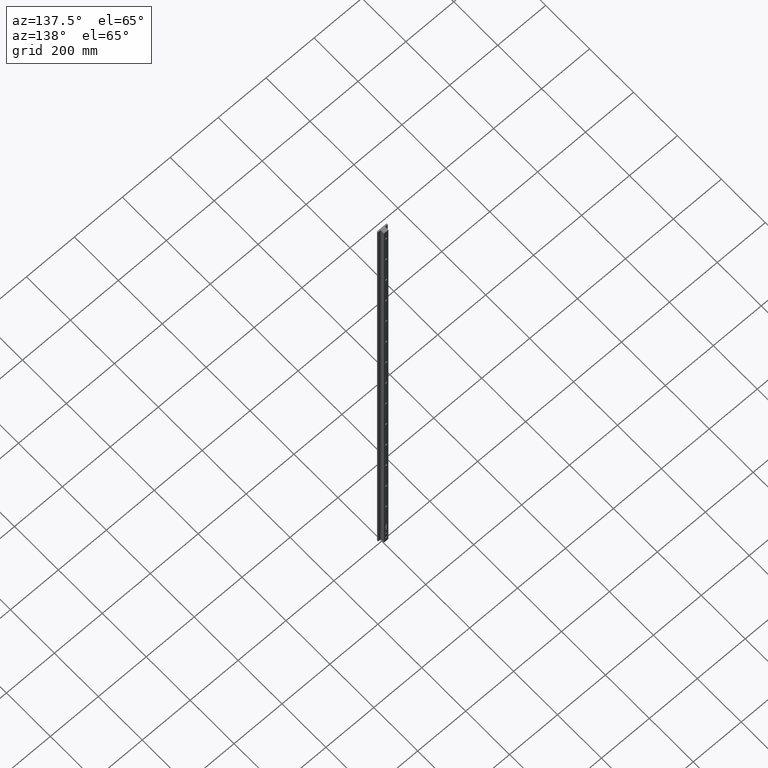
[diagram: clean part render]
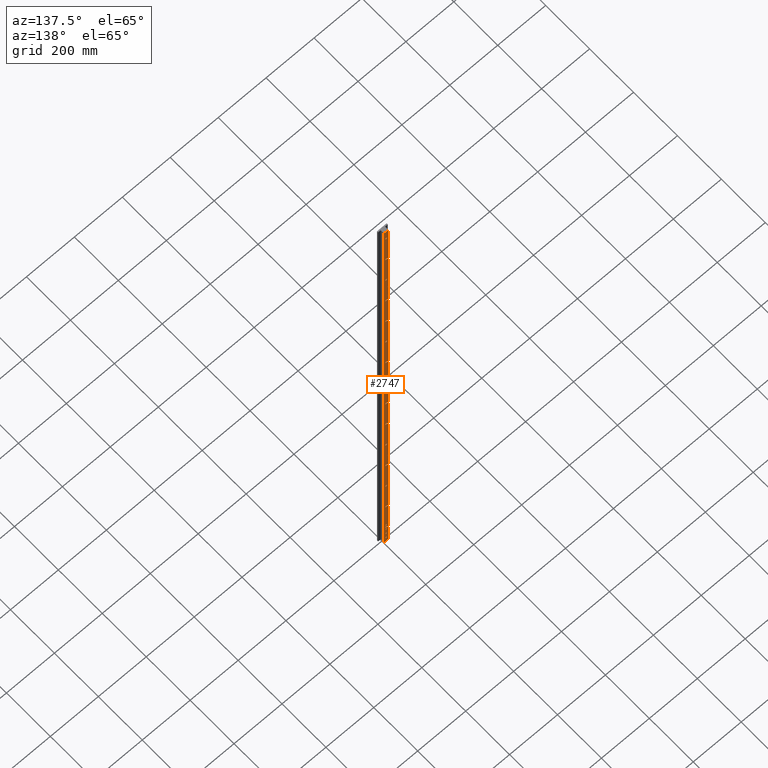
[diagram: same view with one face highlighted and labeled with its STEP entity id]
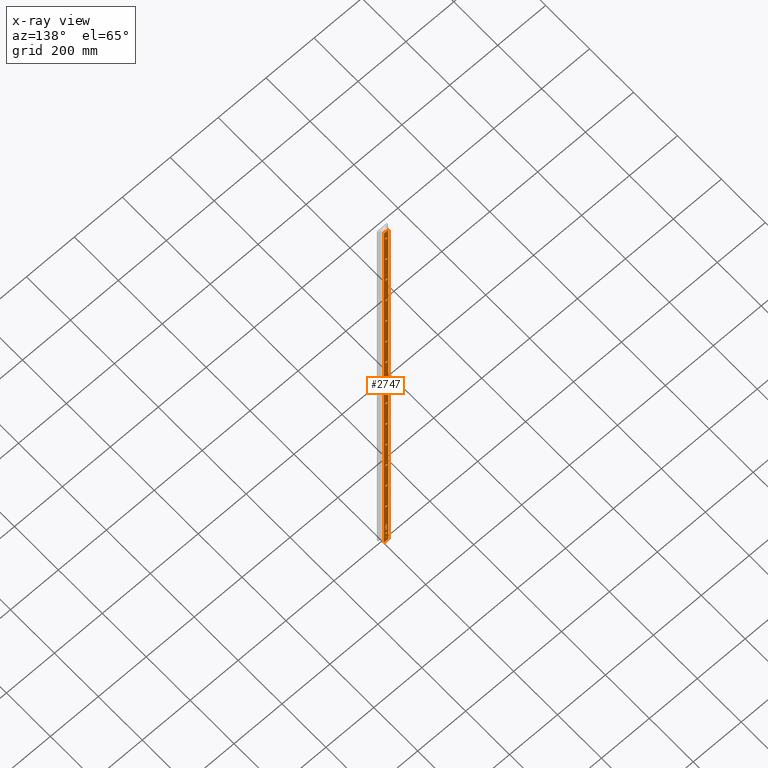
[diagram: x-ray of the same camera — body ghosted, the highlighted face saturated]
A machine part, auxiliary view. The second image highlights one B-rep face of the part: STEP entity #2747.
The next image is the same camera in x-ray: the body ghosted, the highlighted face saturated — about 0% of this face is hidden behind the body in this view.
In plain terms, the highlighted planar face has unit normal (-0, 1, 0).
Its self-contained STEP definition (entity closure, byte-faithful):
#1 = VERTEX_POINT ( 'NONE', #2469 ) ;
#2 = CARTESIAN_POINT ( 'NONE',  ( -4.250000000000003600, 20.00000000000000400, -950.0000000000000000 ) ) ;
#13 = CARTESIAN_POINT ( 'NONE',  ( -1.734723475976807100E-015, 20.00000000000000400, -499.9999999999999400 ) ) ;
#21 = DIRECTION ( 'NONE',  ( 0.0000000000000000000, 0.0000000000000000000, 1.000000000000000000 ) ) ;
#25 = EDGE_CURVE ( 'NONE', #75, #2083, #1128, .T. ) ;
#28 = EDGE_CURVE ( 'NONE', #149, #2575, #2750, .T. ) ;
#39 = DIRECTION ( 'NONE',  ( 8.673617379884034200E-017, -1.000000000000000000, -0.0000000000000000000 ) ) ;
#47 = AXIS2_PLACEMENT_3D ( 'NONE', #2068, #2670, #987 ) ;
#48 = CARTESIAN_POINT ( 'NONE',  ( -1.734723475976807100E-015, 20.00000000000000400, -2150.000000000000000 ) ) ;
#69 = EDGE_CURVE ( 'NONE', #1042, #1499, #1568, .T. ) ;
#70 = CARTESIAN_POINT ( 'NONE',  ( -1.734723475976807100E-015, 20.00000000000000400, -800.0000000000000000 ) ) ;
#73 = AXIS2_PLACEMENT_3D ( 'NONE', #2775, #1085, #1492 ) ;
#75 = VERTEX_POINT ( 'NONE', #307 ) ;
#98 = CARTESIAN_POINT ( 'NONE',  ( 8.999999999999998200, 20.00000000000000700, 0.0000000000000000000 ) ) ;
#100 = DIRECTION ( 'NONE',  ( 8.673617379884034200E-017, -1.000000000000000000, -0.0000000000000000000 ) ) ;
#102 = AXIS2_PLACEMENT_3D ( 'NONE', #810, #1340, #627 ) ;
#104 = EDGE_LOOP ( 'NONE', ( #2219, #1479 ) ) ;
#123 = DIRECTION ( 'NONE',  ( 1.000000000000000000, 0.0000000000000000000, 0.0000000000000000000 ) ) ;
#131 = AXIS2_PLACEMENT_3D ( 'NONE', #345, #2067, #734 ) ;
#140 = LINE ( 'NONE', #1758, #2342 ) ;
#149 = VERTEX_POINT ( 'NONE', #356 ) ;
#164 = EDGE_CURVE ( 'NONE', #2575, #149, #545, .T. ) ;
#174 = DIRECTION ( 'NONE',  ( 8.673617379884034200E-017, -1.000000000000000000, -0.0000000000000000000 ) ) ;
#175 = AXIS2_PLACEMENT_3D ( 'NONE', #2018, #712, #917 ) ;
#186 = CARTESIAN_POINT ( 'NONE',  ( -1.734723475976807100E-015, 20.00000000000000400, -2000.000000000000000 ) ) ;
#193 = AXIS2_PLACEMENT_3D ( 'NONE', #815, #1878, #1017 ) ;
#224 = ORIENTED_EDGE ( 'NONE', *, *, #2380, .T. ) ;
#225 = FACE_BOUND ( 'NONE', #386, .T. ) ;
#235 = ORIENTED_EDGE ( 'NONE', *, *, #1226, .T. ) ;
#237 = ORIENTED_EDGE ( 'NONE', *, *, #1320, .F. ) ;
#240 = CIRCLE ( 'NONE', #632, 3.400000000000069600 ) ;
#241 = EDGE_CURVE ( 'NONE', #2448, #2359, #349, .T. ) ;
#243 = ORIENTED_EDGE ( 'NONE', *, *, #1132, .T. ) ;
#251 = EDGE_CURVE ( 'NONE', #2283, #511, #1495, .T. ) ;
#252 = CARTESIAN_POINT ( 'NONE',  ( 2.880616337584308800E-015, 20.00000000000000700, -2194.999999999999500 ) ) ;
#256 = CARTESIAN_POINT ( 'NONE',  ( -1.734723475976807100E-015, 20.00000000000000400, -1849.999999999999800 ) ) ;
#259 = ORIENTED_EDGE ( 'NONE', *, *, #2561, .T. ) ;
#265 = ORIENTED_EDGE ( 'NONE', *, *, #2542, .T. ) ;
#266 = CARTESIAN_POINT ( 'NONE',  ( 4.250000000000000000, 20.00000000000000400, -950.0000000000000000 ) ) ;
#269 = EDGE_LOOP ( 'NONE', ( #835, #1888 ) ) ;
#280 = ORIENTED_EDGE ( 'NONE', *, *, #2646, .T. ) ;
#281 = CARTESIAN_POINT ( 'NONE',  ( -1.734723475976807100E-015, 20.00000000000000400, -200.0000000000000000 ) ) ;
#283 = CIRCLE ( 'NONE', #2113, 3.400000000000069600 ) ;
#284 = EDGE_CURVE ( 'NONE', #1, #1181, #653, .T. ) ;
#286 = FACE_BOUND ( 'NONE', #2326, .T. ) ;
#288 = CARTESIAN_POINT ( 'NONE',  ( -3.769441481476927300E-016, 20.00000000000000700, -2228.399999999999200 ) ) ;
#306 = DIRECTION ( 'NONE',  ( 0.0000000000000000000, 0.0000000000000000000, 1.000000000000000000 ) ) ;
#307 = CARTESIAN_POINT ( 'NONE',  ( 4.250000000000000000, 20.00000000000000400, -1250.000000000000000 ) ) ;
#310 = ORIENTED_EDGE ( 'NONE', *, *, #2097, .T. ) ;
#316 = FACE_BOUND ( 'NONE', #2026, .T. ) ;
#319 = DIRECTION ( 'NONE',  ( 8.673617379884034200E-017, -1.000000000000000000, -0.0000000000000000000 ) ) ;
#322 = CIRCLE ( 'NONE', #2649, 4.250000000000001800 ) ;
#335 = EDGE_CURVE ( 'NONE', #1483, #624, #283, .T. ) ;
#344 = CARTESIAN_POINT ( 'NONE',  ( -1.734723475976807100E-015, 20.00000000000000400, -650.0000000000000000 ) ) ;
#345 = CARTESIAN_POINT ( 'NONE',  ( -1.734723475976807100E-015, 20.00000000000000400, -1550.000000000000000 ) ) ;
#348 = CARTESIAN_POINT ( 'NONE',  ( -1.734723475976807100E-015, 20.00000000000000400, -650.0000000000000000 ) ) ;
#349 = LINE ( 'NONE', #1928, #521 ) ;
#354 = FACE_BOUND ( 'NONE', #1770, .T. ) ;
#356 = CARTESIAN_POINT ( 'NONE',  ( -4.250000000000003600, 20.00000000000000400, -1550.000000000000000 ) ) ;
#357 = ORIENTED_EDGE ( 'NONE', *, *, #28, .T. ) ;
#359 = CIRCLE ( 'NONE', #1709, 3.400000000000069600 ) ;
#362 = ORIENTED_EDGE ( 'NONE', *, *, #241, .F. ) ;
#364 = AXIS2_PLACEMENT_3D ( 'NONE', #1810, #2249, #123 ) ;
#375 = CARTESIAN_POINT ( 'NONE',  ( -1.734723475976807100E-015, 20.00000000000000400, -950.0000000000000000 ) ) ;
#376 = DIRECTION ( 'NONE',  ( 1.000000000000000000, 0.0000000000000000000, 0.0000000000000000000 ) ) ;
#386 = EDGE_LOOP ( 'NONE', ( #2079, #1353 ) ) ;
#395 = EDGE_CURVE ( 'NONE', #2448, #1229, #140, .T. ) ;
#399 = DIRECTION ( 'NONE',  ( 8.673617379884034200E-017, -1.000000000000000000, -0.0000000000000000000 ) ) ;
#413 = EDGE_CURVE ( 'NONE', #897, #427, #616, .T. ) ;
#414 = DIRECTION ( 'NONE',  ( 8.673617379884034200E-017, -1.000000000000000000, -0.0000000000000000000 ) ) ;
#418 = EDGE_CURVE ( 'NONE', #1181, #1, #2616, .T. ) ;
#424 = FACE_BOUND ( 'NONE', #933, .T. ) ;
#427 = VERTEX_POINT ( 'NONE', #1953 ) ;
#444 = CIRCLE ( 'NONE', #2663, 3.400000000000069600 ) ;
#446 = CARTESIAN_POINT ( 'NONE',  ( 4.250000000000000000, 20.00000000000000400, -1700.000000000000000 ) ) ;
#456 = EDGE_CURVE ( 'NONE', #1142, #1551, #1091, .T. ) ;
#462 = CARTESIAN_POINT ( 'NONE',  ( 1.022849713246833500E-014, 20.00000000000000700, -2131.599999999999900 ) ) ;
#480 = CARTESIAN_POINT ( 'NONE',  ( 6.970936646736380900E-015, 20.00000000000000700, -2168.399999999999600 ) ) ;
#482 = DIRECTION ( 'NONE',  ( 1.000000000000000000, 0.0000000000000000000, 0.0000000000000000000 ) ) ;
#487 = DIRECTION ( 'NONE',  ( 1.000000000000000000, 0.0000000000000000000, 0.0000000000000000000 ) ) ;
#491 = CARTESIAN_POINT ( 'NONE',  ( -1.734723475976807100E-015, 20.00000000000000400, -1250.000000000000000 ) ) ;
#511 = VERTEX_POINT ( 'NONE', #2680 ) ;
#518 = ORIENTED_EDGE ( 'NONE', *, *, #2246, .T. ) ;
#519 = AXIS2_PLACEMENT_3D ( 'NONE', #2558, #399, #618 ) ;
#521 = VECTOR ( 'NONE', #1260, 1000.000000000000000 ) ;
#522 = FACE_BOUND ( 'NONE', #769, .T. ) ;
#536 = AXIS2_PLACEMENT_3D ( 'NONE', #2227, #1779, #1361 ) ;
#540 = DIRECTION ( 'NONE',  ( 8.673617379884034200E-017, -1.000000000000000000, -0.0000000000000000000 ) ) ;
#545 = CIRCLE ( 'NONE', #193, 4.250000000000001800 ) ;
#548 = CIRCLE ( 'NONE', #790, 4.250000000000001800 ) ;
#551 = FACE_BOUND ( 'NONE', #104, .T. ) ;
#553 = VERTEX_POINT ( 'NONE', #1604 ) ;
#562 = CIRCLE ( 'NONE', #683, 4.250000000000001800 ) ;
#583 = FACE_BOUND ( 'NONE', #992, .T. ) ;
#584 = ORIENTED_EDGE ( 'NONE', *, *, #1964, .F. ) ;
#602 = VERTEX_POINT ( 'NONE', #1615 ) ;
#614 = DIRECTION ( 'NONE',  ( 8.673617379884034200E-017, -1.000000000000000000, -0.0000000000000000000 ) ) ;
#616 = CIRCLE ( 'NONE', #1664, 4.250000000000001800 ) ;
#618 = DIRECTION ( 'NONE',  ( 1.000000000000000000, 0.0000000000000000000, 0.0000000000000000000 ) ) ;
#624 = VERTEX_POINT ( 'NONE', #1650 ) ;
#626 = EDGE_CURVE ( 'NONE', #1683, #2152, #1889, .T. ) ;
#627 = DIRECTION ( 'NONE',  ( 1.000000000000000000, 0.0000000000000000000, 0.0000000000000000000 ) ) ;
#632 = AXIS2_PLACEMENT_3D ( 'NONE', #252, #1744, #905 ) ;
#653 = CIRCLE ( 'NONE', #519, 4.250000000000001800 ) ;
#656 = ORIENTED_EDGE ( 'NONE', *, *, #164, .T. ) ;
#657 = FACE_BOUND ( 'NONE', #975, .T. ) ;
#658 = DIRECTION ( 'NONE',  ( 8.673617379884034200E-017, -1.000000000000000000, -0.0000000000000000000 ) ) ;
#663 = CARTESIAN_POINT ( 'NONE',  ( -4.250000000000003600, 20.00000000000000400, -50.00000000000000000 ) ) ;
#665 = EDGE_CURVE ( 'NONE', #511, #2283, #2064, .T. ) ;
#666 = EDGE_CURVE ( 'NONE', #2053, #2393, #812, .T. ) ;
#672 = DIRECTION ( 'NONE',  ( 1.000000000000000000, 0.0000000000000000000, 0.0000000000000000000 ) ) ;
#683 = AXIS2_PLACEMENT_3D ( 'NONE', #491, #709, #939 ) ;
#700 = CIRCLE ( 'NONE', #364, 4.250000000000001800 ) ;
#702 = EDGE_CURVE ( 'NONE', #2359, #1312, #2266, .T. ) ;
#709 = DIRECTION ( 'NONE',  ( 8.673617379884034200E-017, -1.000000000000000000, -0.0000000000000000000 ) ) ;
#712 = DIRECTION ( 'NONE',  ( -0.0000000000000000000, 1.000000000000000000, -0.0000000000000000000 ) ) ;
#717 = EDGE_CURVE ( 'NONE', #1939, #2492, #2167, .T. ) ;
#722 = EDGE_LOOP ( 'NONE', ( #924, #2621 ) ) ;
#732 = ORIENTED_EDGE ( 'NONE', *, *, #1616, .T. ) ;
#734 = DIRECTION ( 'NONE',  ( 1.000000000000000000, 0.0000000000000000000, 0.0000000000000000000 ) ) ;
#759 = ORIENTED_EDGE ( 'NONE', *, *, #1717, .T. ) ;
#769 = EDGE_LOOP ( 'NONE', ( #732, #259 ) ) ;
#773 = AXIS2_PLACEMENT_3D ( 'NONE', #2497, #540, #986 ) ;
#790 = AXIS2_PLACEMENT_3D ( 'NONE', #1962, #658, #672 ) ;
#791 = EDGE_CURVE ( 'NONE', #1126, #2631, #2807, .T. ) ;
#798 = PLANE ( 'NONE',  #1833 ) ;
#810 = CARTESIAN_POINT ( 'NONE',  ( -1.734723475976807100E-015, 20.00000000000000400, -350.0000000000000000 ) ) ;
#812 = CIRCLE ( 'NONE', #2487, 4.250000000000001800 ) ;
#815 = CARTESIAN_POINT ( 'NONE',  ( -1.734723475976807100E-015, 20.00000000000000400, -1550.000000000000000 ) ) ;
#826 = AXIS2_PLACEMENT_3D ( 'NONE', #1048, #174, #2131 ) ;
#832 = CIRCLE ( 'NONE', #1849, 3.400000000000069600 ) ;
#833 = CARTESIAN_POINT ( 'NONE',  ( -1.734723475976807100E-015, 20.00000000000000400, -350.0000000000000000 ) ) ;
#835 = ORIENTED_EDGE ( 'NONE', *, *, #2686, .T. ) ;
#843 = DIRECTION ( 'NONE',  ( 1.000000000000000000, 0.0000000000000000000, 0.0000000000000000000 ) ) ;
#851 = CARTESIAN_POINT ( 'NONE',  ( -4.250000000000003600, 20.00000000000000400, -350.0000000000000000 ) ) ;
#877 = ORIENTED_EDGE ( 'NONE', *, *, #665, .T. ) ;
#880 = CARTESIAN_POINT ( 'NONE',  ( 2.880616337584308800E-015, 20.00000000000000700, -2194.999999999999500 ) ) ;
#897 = VERTEX_POINT ( 'NONE', #1886 ) ;
#905 = DIRECTION ( 'NONE',  ( 0.0000000000000000000, 0.0000000000000000000, 1.000000000000000000 ) ) ;
#913 = AXIS2_PLACEMENT_3D ( 'NONE', #1609, #319, #2135 ) ;
#917 = DIRECTION ( 'NONE',  ( 0.0000000000000000000, 0.0000000000000000000, 1.000000000000000000 ) ) ;
#918 = DIRECTION ( 'NONE',  ( 1.000000000000000000, 0.0000000000000000000, 0.0000000000000000000 ) ) ;
#919 = AXIS2_PLACEMENT_3D ( 'NONE', #1719, #1548, #482 ) ;
#924 = ORIENTED_EDGE ( 'NONE', *, *, #25, .T. ) ;
#933 = EDGE_LOOP ( 'NONE', ( #1429, #518 ) ) ;
#939 = DIRECTION ( 'NONE',  ( 1.000000000000000000, 0.0000000000000000000, 0.0000000000000000000 ) ) ;
#945 = DIRECTION ( 'NONE',  ( 8.673617379884034200E-017, -1.000000000000000000, -0.0000000000000000000 ) ) ;
#956 = VERTEX_POINT ( 'NONE', #2403 ) ;
#958 = DIRECTION ( 'NONE',  ( -0.0000000000000000000, 1.000000000000000000, -0.0000000000000000000 ) ) ;
#975 = EDGE_LOOP ( 'NONE', ( #2078, #2446 ) ) ;
#977 = ORIENTED_EDGE ( 'NONE', *, *, #1298, .T. ) ;
#986 = DIRECTION ( 'NONE',  ( 1.000000000000000000, 0.0000000000000000000, 0.0000000000000000000 ) ) ;
#987 = DIRECTION ( 'NONE',  ( 1.000000000000000000, 0.0000000000000000000, 0.0000000000000000000 ) ) ;
#992 = EDGE_LOOP ( 'NONE', ( #2282, #1309 ) ) ;
#993 = FACE_BOUND ( 'NONE', #2592, .T. ) ;
#1008 = EDGE_CURVE ( 'NONE', #2665, #1148, #548, .T. ) ;
#1010 = DIRECTION ( 'NONE',  ( 8.673617379884034200E-017, -1.000000000000000000, -0.0000000000000000000 ) ) ;
#1015 = DIRECTION ( 'NONE',  ( -1.000000000000000000, -1.927470528863118800E-016, 0.0000000000000000000 ) ) ;
#1017 = DIRECTION ( 'NONE',  ( 1.000000000000000000, 0.0000000000000000000, 0.0000000000000000000 ) ) ;
#1022 = ORIENTED_EDGE ( 'NONE', *, *, #335, .F. ) ;
#1042 = VERTEX_POINT ( 'NONE', #1748 ) ;
#1045 = CARTESIAN_POINT ( 'NONE',  ( 4.250000000000000000, 20.00000000000000400, -50.00000000000000000 ) ) ;
#1048 = CARTESIAN_POINT ( 'NONE',  ( -1.734723475976807100E-015, 20.00000000000000400, -2000.000000000000000 ) ) ;
#1069 = ORIENTED_EDGE ( 'NONE', *, *, #1857, .F. ) ;
#1085 = DIRECTION ( 'NONE',  ( 8.673617379884034200E-017, -1.000000000000000000, -0.0000000000000000000 ) ) ;
#1091 = CIRCLE ( 'NONE', #2400, 4.250000000000001800 ) ;
#1099 = VECTOR ( 'NONE', #1613, 1000.000000000000000 ) ;
#1120 = DIRECTION ( 'NONE',  ( 8.673617379884034200E-017, -1.000000000000000000, -0.0000000000000000000 ) ) ;
#1125 = CARTESIAN_POINT ( 'NONE',  ( -4.250000000000003600, 20.00000000000000400, -1400.000000000000000 ) ) ;
#1126 = VERTEX_POINT ( 'NONE', #288 ) ;
#1128 = CIRCLE ( 'NONE', #773, 4.250000000000001800 ) ;
#1132 = EDGE_CURVE ( 'NONE', #1148, #2665, #1687, .T. ) ;
#1142 = VERTEX_POINT ( 'NONE', #266 ) ;
#1148 = VERTEX_POINT ( 'NONE', #2426 ) ;
#1156 = AXIS2_PLACEMENT_3D ( 'NONE', #1384, #1197, #2704 ) ;
#1181 = VERTEX_POINT ( 'NONE', #2228 ) ;
#1196 = AXIS2_PLACEMENT_3D ( 'NONE', #281, #39, #918 ) ;
#1197 = DIRECTION ( 'NONE',  ( 8.673617379884034200E-017, -1.000000000000000000, -0.0000000000000000000 ) ) ;
#1198 = DIRECTION ( 'NONE',  ( 1.000000000000000000, 0.0000000000000000000, 0.0000000000000000000 ) ) ;
#1204 = CIRCLE ( 'NONE', #1250, 4.250000000000001800 ) ;
#1226 = EDGE_CURVE ( 'NONE', #553, #1539, #2085, .T. ) ;
#1229 = VERTEX_POINT ( 'NONE', #1459 ) ;
#1231 = CIRCLE ( 'NONE', #102, 4.250000000000001800 ) ;
#1250 = AXIS2_PLACEMENT_3D ( 'NONE', #375, #2082, #843 ) ;
#1252 = DIRECTION ( 'NONE',  ( 0.0000000000000000000, 0.0000000000000000000, 1.000000000000000000 ) ) ;
#1260 = DIRECTION ( 'NONE',  ( 0.0000000000000000000, 0.0000000000000000000, 1.000000000000000000 ) ) ;
#1298 = EDGE_CURVE ( 'NONE', #2393, #2053, #1316, .T. ) ;
#1302 = FACE_BOUND ( 'NONE', #1441, .T. ) ;
#1309 = ORIENTED_EDGE ( 'NONE', *, *, #284, .T. ) ;
#1312 = VERTEX_POINT ( 'NONE', #2101 ) ;
#1316 = CIRCLE ( 'NONE', #2275, 4.250000000000001800 ) ;
#1320 = EDGE_CURVE ( 'NONE', #602, #1436, #444, .T. ) ;
#1322 = CARTESIAN_POINT ( 'NONE',  ( -4.250000000000003600, 20.00000000000000400, -200.0000000000000000 ) ) ;
#1326 = DIRECTION ( 'NONE',  ( 0.0000000000000000000, 0.0000000000000000000, 1.000000000000000000 ) ) ;
#1330 = DIRECTION ( 'NONE',  ( 8.673617379884034200E-017, -1.000000000000000000, -0.0000000000000000000 ) ) ;
#1340 = DIRECTION ( 'NONE',  ( 8.673617379884034200E-017, -1.000000000000000000, -0.0000000000000000000 ) ) ;
#1348 = CARTESIAN_POINT ( 'NONE',  ( -4.250000000000003600, 20.00000000000000400, -1849.999999999999800 ) ) ;
#1353 = ORIENTED_EDGE ( 'NONE', *, *, #791, .F. ) ;
#1361 = DIRECTION ( 'NONE',  ( 1.000000000000000000, 0.0000000000000000000, 0.0000000000000000000 ) ) ;
#1363 = DIRECTION ( 'NONE',  ( 8.673617379884034200E-017, -1.000000000000000000, -0.0000000000000000000 ) ) ;
#1367 = CIRCLE ( 'NONE', #1892, 4.250000000000001800 ) ;
#1384 = CARTESIAN_POINT ( 'NONE',  ( -1.734723475976807100E-015, 20.00000000000000400, -1700.000000000000000 ) ) ;
#1401 = AXIS2_PLACEMENT_3D ( 'NONE', #186, #2117, #2365 ) ;
#1403 = VERTEX_POINT ( 'NONE', #1045 ) ;
#1429 = ORIENTED_EDGE ( 'NONE', *, *, #2727, .T. ) ;
#1433 = CIRCLE ( 'NONE', #1537, 4.250000000000001800 ) ;
#1436 = VERTEX_POINT ( 'NONE', #480 ) ;
#1441 = EDGE_LOOP ( 'NONE', ( #2462, #759 ) ) ;
#1444 = DIRECTION ( 'NONE',  ( 8.673617379884034200E-017, -1.000000000000000000, -0.0000000000000000000 ) ) ;
#1459 = CARTESIAN_POINT ( 'NONE',  ( -9.000000000000001800, 20.00000000000000400, -2250.000000000000000 ) ) ;
#1479 = ORIENTED_EDGE ( 'NONE', *, *, #626, .T. ) ;
#1483 = VERTEX_POINT ( 'NONE', #462 ) ;
#1490 = CARTESIAN_POINT ( 'NONE',  ( 8.999999999999998200, 20.00000000000000700, 0.0000000000000000000 ) ) ;
#1492 = DIRECTION ( 'NONE',  ( 1.000000000000000000, 0.0000000000000000000, 0.0000000000000000000 ) ) ;
#1495 = CIRCLE ( 'NONE', #73, 4.250000000000001800 ) ;
#1499 = VERTEX_POINT ( 'NONE', #446 ) ;
#1530 = DIRECTION ( 'NONE',  ( 8.673617379884034200E-017, -1.000000000000000000, -0.0000000000000000000 ) ) ;
#1537 = AXIS2_PLACEMENT_3D ( 'NONE', #256, #2213, #2008 ) ;
#1539 = VERTEX_POINT ( 'NONE', #2373 ) ;
#1542 = DIRECTION ( 'NONE',  ( -0.0000000000000000000, 1.000000000000000000, -0.0000000000000000000 ) ) ;
#1548 = DIRECTION ( 'NONE',  ( 8.673617379884034200E-017, -1.000000000000000000, -0.0000000000000000000 ) ) ;
#1551 = VERTEX_POINT ( 'NONE', #2 ) ;
#1565 = EDGE_CURVE ( 'NONE', #1587, #956, #240, .T. ) ;
#1568 = CIRCLE ( 'NONE', #1156, 4.250000000000001800 ) ;
#1569 = AXIS2_PLACEMENT_3D ( 'NONE', #1859, #614, #2319 ) ;
#1571 = FACE_BOUND ( 'NONE', #1868, .T. ) ;
#1587 = VERTEX_POINT ( 'NONE', #2221 ) ;
#1589 = DIRECTION ( 'NONE',  ( 1.000000000000000000, 0.0000000000000000000, 0.0000000000000000000 ) ) ;
#1591 = EDGE_LOOP ( 'NONE', ( #2020, #310 ) ) ;
#1604 = CARTESIAN_POINT ( 'NONE',  ( 4.250000000000000000, 20.00000000000000400, -499.9999999999999400 ) ) ;
#1605 = CARTESIAN_POINT ( 'NONE',  ( 4.250000000000000000, 20.00000000000000400, -1849.999999999999800 ) ) ;
#1609 = CARTESIAN_POINT ( 'NONE',  ( -1.734723475976807100E-015, 20.00000000000000400, -50.00000000000000000 ) ) ;
#1613 = DIRECTION ( 'NONE',  ( 0.0000000000000000000, 0.0000000000000000000, 1.000000000000000000 ) ) ;
#1615 = CARTESIAN_POINT ( 'NONE',  ( 6.554556735026291500E-015, 20.00000000000000700, -2161.599999999999500 ) ) ;
#1616 = EDGE_CURVE ( 'NONE', #1403, #2488, #2794, .T. ) ;
#1618 = EDGE_CURVE ( 'NONE', #2083, #75, #562, .T. ) ;
#1623 = CARTESIAN_POINT ( 'NONE',  ( -7.933240598577817900E-016, 20.00000000000000700, -2224.999999999999100 ) ) ;
#1641 = DIRECTION ( 'NONE',  ( 0.0000000000000000000, 0.0000000000000000000, 1.000000000000000000 ) ) ;
#1650 = CARTESIAN_POINT ( 'NONE',  ( 1.064487704417842400E-014, 20.00000000000000700, -2138.399999999999600 ) ) ;
#1658 = FACE_BOUND ( 'NONE', #269, .T. ) ;
#1664 = AXIS2_PLACEMENT_3D ( 'NONE', #48, #1120, #487 ) ;
#1677 = CARTESIAN_POINT ( 'NONE',  ( -4.250000000000003600, 20.00000000000000400, -2000.000000000000000 ) ) ;
#1683 = VERTEX_POINT ( 'NONE', #1348 ) ;
#1687 = CIRCLE ( 'NONE', #2471, 4.250000000000001800 ) ;
#1709 = AXIS2_PLACEMENT_3D ( 'NONE', #2279, #958, #306 ) ;
#1717 = EDGE_CURVE ( 'NONE', #2801, #1919, #2186, .T. ) ;
#1719 = CARTESIAN_POINT ( 'NONE',  ( -1.734723475976807100E-015, 20.00000000000000400, -1100.000000000000000 ) ) ;
#1744 = DIRECTION ( 'NONE',  ( -0.0000000000000000000, 1.000000000000000000, -0.0000000000000000000 ) ) ;
#1745 = VECTOR ( 'NONE', #2442, 1000.000000000000000 ) ;
#1748 = CARTESIAN_POINT ( 'NONE',  ( -4.250000000000003600, 20.00000000000000400, -1700.000000000000000 ) ) ;
#1750 = VERTEX_POINT ( 'NONE', #2354 ) ;
#1754 = EDGE_CURVE ( 'NONE', #1919, #2801, #1913, .T. ) ;
#1756 = DIRECTION ( 'NONE',  ( 1.000000000000000000, 0.0000000000000000000, 0.0000000000000000000 ) ) ;
#1758 = CARTESIAN_POINT ( 'NONE',  ( 8.999999999999998200, 20.00000000000000700, -2250.000000000000000 ) ) ;
#1761 = ORIENTED_EDGE ( 'NONE', *, *, #1565, .F. ) ;
#1763 = LINE ( 'NONE', #2298, #1099 ) ;
#1767 = EDGE_LOOP ( 'NONE', ( #1069, #1761 ) ) ;
#1770 = EDGE_LOOP ( 'NONE', ( #656, #357 ) ) ;
#1779 = DIRECTION ( 'NONE',  ( 8.673617379884034200E-017, -1.000000000000000000, -0.0000000000000000000 ) ) ;
#1791 = FACE_BOUND ( 'NONE', #722, .T. ) ;
#1810 = CARTESIAN_POINT ( 'NONE',  ( -1.734723475976807100E-015, 20.00000000000000400, -2150.000000000000000 ) ) ;
#1822 = ORIENTED_EDGE ( 'NONE', *, *, #717, .T. ) ;
#1824 = DIRECTION ( 'NONE',  ( 1.000000000000000000, 0.0000000000000000000, 0.0000000000000000000 ) ) ;
#1827 = ORIENTED_EDGE ( 'NONE', *, *, #702, .F. ) ;
#1833 = AXIS2_PLACEMENT_3D ( 'NONE', #2766, #2307, #1015 ) ;
#1849 = AXIS2_PLACEMENT_3D ( 'NONE', #880, #2394, #21 ) ;
#1857 = EDGE_CURVE ( 'NONE', #956, #1587, #832, .T. ) ;
#1859 = CARTESIAN_POINT ( 'NONE',  ( -1.734723475976807100E-015, 20.00000000000000400, -1849.999999999999800 ) ) ;
#1862 = FACE_BOUND ( 'NONE', #2563, .T. ) ;
#1868 = EDGE_LOOP ( 'NONE', ( #977, #2671 ) ) ;
#1878 = DIRECTION ( 'NONE',  ( 8.673617379884034200E-017, -1.000000000000000000, -0.0000000000000000000 ) ) ;
#1886 = CARTESIAN_POINT ( 'NONE',  ( 4.250000000000000000, 20.00000000000000400, -2150.000000000000000 ) ) ;
#1888 = ORIENTED_EDGE ( 'NONE', *, *, #69, .T. ) ;
#1889 = CIRCLE ( 'NONE', #1569, 4.250000000000001800 ) ;
#1892 = AXIS2_PLACEMENT_3D ( 'NONE', #2263, #100, #2250 ) ;
#1894 = DIRECTION ( 'NONE',  ( -0.0000000000000000000, 1.000000000000000000, -0.0000000000000000000 ) ) ;
#1902 = CIRCLE ( 'NONE', #913, 4.250000000000001800 ) ;
#1906 = ORIENTED_EDGE ( 'NONE', *, *, #1008, .T. ) ;
#1910 = DIRECTION ( 'NONE',  ( 0.0000000000000000000, 0.0000000000000000000, 1.000000000000000000 ) ) ;
#1913 = CIRCLE ( 'NONE', #1401, 4.250000000000001800 ) ;
#1919 = VERTEX_POINT ( 'NONE', #1955 ) ;
#1928 = CARTESIAN_POINT ( 'NONE',  ( 8.999999999999998200, 20.00000000000000700, -2250.000000000000000 ) ) ;
#1931 = CARTESIAN_POINT ( 'NONE',  ( -7.933240598577817900E-016, 20.00000000000000700, -2221.599999999999000 ) ) ;
#1939 = VERTEX_POINT ( 'NONE', #1322 ) ;
#1952 = EDGE_CURVE ( 'NONE', #2152, #1683, #1433, .T. ) ;
#1953 = CARTESIAN_POINT ( 'NONE',  ( -4.250000000000003600, 20.00000000000000400, -2150.000000000000000 ) ) ;
#1955 = CARTESIAN_POINT ( 'NONE',  ( 4.250000000000000000, 20.00000000000000400, -2000.000000000000000 ) ) ;
#1962 = CARTESIAN_POINT ( 'NONE',  ( -1.734723475976807100E-015, 20.00000000000000400, -800.0000000000000000 ) ) ;
#1964 = EDGE_CURVE ( 'NONE', #1436, #602, #2084, .T. ) ;
#1996 = CARTESIAN_POINT ( 'NONE',  ( 1.022849713246833500E-014, 20.00000000000000700, -2135.000000000000000 ) ) ;
#2008 = DIRECTION ( 'NONE',  ( 1.000000000000000000, 0.0000000000000000000, 0.0000000000000000000 ) ) ;
#2018 = CARTESIAN_POINT ( 'NONE',  ( 6.554556735026291500E-015, 20.00000000000000700, -2164.999999999999500 ) ) ;
#2020 = ORIENTED_EDGE ( 'NONE', *, *, #413, .T. ) ;
#2026 = EDGE_LOOP ( 'NONE', ( #1022, #2627 ) ) ;
#2036 = CARTESIAN_POINT ( 'NONE',  ( -4.250000000000003600, 20.00000000000000400, -1250.000000000000000 ) ) ;
#2053 = VERTEX_POINT ( 'NONE', #2440 ) ;
#2056 = EDGE_CURVE ( 'NONE', #2631, #1126, #359, .T. ) ;
#2064 = CIRCLE ( 'NONE', #2435, 4.250000000000001800 ) ;
#2066 = AXIS2_PLACEMENT_3D ( 'NONE', #1996, #1542, #1326 ) ;
#2067 = DIRECTION ( 'NONE',  ( 8.673617379884034200E-017, -1.000000000000000000, -0.0000000000000000000 ) ) ;
#2068 = CARTESIAN_POINT ( 'NONE',  ( -1.734723475976807100E-015, 20.00000000000000400, -499.9999999999999400 ) ) ;
#2074 = EDGE_LOOP ( 'NONE', ( #1827, #362, #2215, #224 ) ) ;
#2078 = ORIENTED_EDGE ( 'NONE', *, *, #456, .T. ) ;
#2079 = ORIENTED_EDGE ( 'NONE', *, *, #2056, .F. ) ;
#2082 = DIRECTION ( 'NONE',  ( 8.673617379884034200E-017, -1.000000000000000000, -0.0000000000000000000 ) ) ;
#2083 = VERTEX_POINT ( 'NONE', #2036 ) ;
#2084 = CIRCLE ( 'NONE', #175, 3.400000000000069600 ) ;
#2085 = CIRCLE ( 'NONE', #47, 4.250000000000001800 ) ;
#2097 = EDGE_CURVE ( 'NONE', #427, #897, #700, .T. ) ;
#2101 = CARTESIAN_POINT ( 'NONE',  ( -9.000000000000001800, 20.00000000000000400, 0.0000000000000000000 ) ) ;
#2113 = AXIS2_PLACEMENT_3D ( 'NONE', #2150, #2352, #1910 ) ;
#2117 = DIRECTION ( 'NONE',  ( 8.673617379884034200E-017, -1.000000000000000000, -0.0000000000000000000 ) ) ;
#2118 = ORIENTED_EDGE ( 'NONE', *, *, #251, .T. ) ;
#2119 = AXIS2_PLACEMENT_3D ( 'NONE', #833, #414, #2361 ) ;
#2131 = DIRECTION ( 'NONE',  ( 1.000000000000000000, 0.0000000000000000000, 0.0000000000000000000 ) ) ;
#2135 = DIRECTION ( 'NONE',  ( 1.000000000000000000, 0.0000000000000000000, 0.0000000000000000000 ) ) ;
#2143 = FACE_BOUND ( 'NONE', #1591, .T. ) ;
#2145 = CARTESIAN_POINT ( 'NONE',  ( 6.554556735026291500E-015, 20.00000000000000700, -2164.999999999999500 ) ) ;
#2150 = CARTESIAN_POINT ( 'NONE',  ( 1.022849713246833500E-014, 20.00000000000000700, -2135.000000000000000 ) ) ;
#2152 = VERTEX_POINT ( 'NONE', #1605 ) ;
#2153 = CARTESIAN_POINT ( 'NONE',  ( 4.250000000000000000, 20.00000000000000400, -1550.000000000000000 ) ) ;
#2167 = CIRCLE ( 'NONE', #2297, 4.250000000000001800 ) ;
#2186 = CIRCLE ( 'NONE', #826, 4.250000000000001800 ) ;
#2210 = FACE_BOUND ( 'NONE', #2612, .T. ) ;
#2213 = DIRECTION ( 'NONE',  ( 8.673617379884034200E-017, -1.000000000000000000, -0.0000000000000000000 ) ) ;
#2215 = ORIENTED_EDGE ( 'NONE', *, *, #395, .T. ) ;
#2218 = EDGE_CURVE ( 'NONE', #1551, #1142, #1204, .T. ) ;
#2219 = ORIENTED_EDGE ( 'NONE', *, *, #1952, .T. ) ;
#2221 = CARTESIAN_POINT ( 'NONE',  ( 3.296996249294397900E-015, 20.00000000000000700, -2198.399999999999600 ) ) ;
#2227 = CARTESIAN_POINT ( 'NONE',  ( -1.734723475976807100E-015, 20.00000000000000400, -50.00000000000000000 ) ) ;
#2228 = CARTESIAN_POINT ( 'NONE',  ( 4.250000000000000000, 20.00000000000000400, -1100.000000000000000 ) ) ;
#2246 = EDGE_CURVE ( 'NONE', #2251, #1750, #2725, .T. ) ;
#2249 = DIRECTION ( 'NONE',  ( 8.673617379884034200E-017, -1.000000000000000000, -0.0000000000000000000 ) ) ;
#2250 = DIRECTION ( 'NONE',  ( 1.000000000000000000, 0.0000000000000000000, 0.0000000000000000000 ) ) ;
#2251 = VERTEX_POINT ( 'NONE', #851 ) ;
#2263 = CARTESIAN_POINT ( 'NONE',  ( -1.734723475976807100E-015, 20.00000000000000400, -1700.000000000000000 ) ) ;
#2266 = LINE ( 'NONE', #1490, #1745 ) ;
#2275 = AXIS2_PLACEMENT_3D ( 'NONE', #344, #1444, #376 ) ;
#2279 = CARTESIAN_POINT ( 'NONE',  ( -7.933240598577817900E-016, 20.00000000000000700, -2224.999999999999100 ) ) ;
#2281 = FACE_BOUND ( 'NONE', #1767, .T. ) ;
#2282 = ORIENTED_EDGE ( 'NONE', *, *, #418, .T. ) ;
#2283 = VERTEX_POINT ( 'NONE', #1125 ) ;
#2297 = AXIS2_PLACEMENT_3D ( 'NONE', #2675, #945, #1198 ) ;
#2298 = CARTESIAN_POINT ( 'NONE',  ( -9.000000000000001800, 20.00000000000000400, -2250.000000000000000 ) ) ;
#2302 = CARTESIAN_POINT ( 'NONE',  ( -1.734723475976807100E-015, 20.00000000000000400, -1400.000000000000000 ) ) ;
#2303 = CARTESIAN_POINT ( 'NONE',  ( 4.250000000000000000, 20.00000000000000400, -650.0000000000000000 ) ) ;
#2307 = DIRECTION ( 'NONE',  ( -1.927470528863118800E-016, 1.000000000000000000, 0.0000000000000000000 ) ) ;
#2312 = FACE_BOUND ( 'NONE', #2780, .T. ) ;
#2313 = DIRECTION ( 'NONE',  ( 8.673617379884034200E-017, -1.000000000000000000, -0.0000000000000000000 ) ) ;
#2319 = DIRECTION ( 'NONE',  ( 1.000000000000000000, 0.0000000000000000000, 0.0000000000000000000 ) ) ;
#2326 = EDGE_LOOP ( 'NONE', ( #235, #265 ) ) ;
#2342 = VECTOR ( 'NONE', #2624, 1000.000000000000000 ) ;
#2352 = DIRECTION ( 'NONE',  ( -0.0000000000000000000, 1.000000000000000000, -0.0000000000000000000 ) ) ;
#2354 = CARTESIAN_POINT ( 'NONE',  ( 4.250000000000000000, 20.00000000000000400, -350.0000000000000000 ) ) ;
#2359 = VERTEX_POINT ( 'NONE', #98 ) ;
#2361 = DIRECTION ( 'NONE',  ( 1.000000000000000000, 0.0000000000000000000, 0.0000000000000000000 ) ) ;
#2365 = DIRECTION ( 'NONE',  ( 1.000000000000000000, 0.0000000000000000000, 0.0000000000000000000 ) ) ;
#2373 = CARTESIAN_POINT ( 'NONE',  ( -4.250000000000003600, 20.00000000000000400, -499.9999999999999400 ) ) ;
#2380 = EDGE_CURVE ( 'NONE', #1229, #1312, #1763, .T. ) ;
#2385 = DIRECTION ( 'NONE',  ( 1.000000000000000000, 0.0000000000000000000, 0.0000000000000000000 ) ) ;
#2390 = CARTESIAN_POINT ( 'NONE',  ( 4.250000000000000000, 20.00000000000000400, -200.0000000000000000 ) ) ;
#2393 = VERTEX_POINT ( 'NONE', #2303 ) ;
#2394 = DIRECTION ( 'NONE',  ( -0.0000000000000000000, 1.000000000000000000, -0.0000000000000000000 ) ) ;
#2400 = AXIS2_PLACEMENT_3D ( 'NONE', #2639, #1330, #2385 ) ;
#2403 = CARTESIAN_POINT ( 'NONE',  ( 2.880616337584308800E-015, 20.00000000000000700, -2191.599999999999500 ) ) ;
#2426 = CARTESIAN_POINT ( 'NONE',  ( -4.250000000000003600, 20.00000000000000400, -800.0000000000000000 ) ) ;
#2435 = AXIS2_PLACEMENT_3D ( 'NONE', #2302, #2313, #2706 ) ;
#2440 = CARTESIAN_POINT ( 'NONE',  ( -4.250000000000003600, 20.00000000000000400, -650.0000000000000000 ) ) ;
#2442 = DIRECTION ( 'NONE',  ( -1.000000000000000000, -1.927470528863119000E-016, 0.0000000000000000000 ) ) ;
#2446 = ORIENTED_EDGE ( 'NONE', *, *, #2218, .T. ) ;
#2448 = VERTEX_POINT ( 'NONE', #2537 ) ;
#2462 = ORIENTED_EDGE ( 'NONE', *, *, #1754, .T. ) ;
#2469 = CARTESIAN_POINT ( 'NONE',  ( -4.250000000000003600, 20.00000000000000400, -1100.000000000000000 ) ) ;
#2471 = AXIS2_PLACEMENT_3D ( 'NONE', #70, #1363, #1589 ) ;
#2487 = AXIS2_PLACEMENT_3D ( 'NONE', #348, #1010, #1824 ) ;
#2488 = VERTEX_POINT ( 'NONE', #663 ) ;
#2492 = VERTEX_POINT ( 'NONE', #2390 ) ;
#2497 = CARTESIAN_POINT ( 'NONE',  ( -1.734723475976807100E-015, 20.00000000000000400, -1250.000000000000000 ) ) ;
#2500 = EDGE_CURVE ( 'NONE', #624, #1483, #2622, .T. ) ;
#2537 = CARTESIAN_POINT ( 'NONE',  ( 8.999999999999998200, 20.00000000000000700, -2250.000000000000000 ) ) ;
#2542 = EDGE_CURVE ( 'NONE', #1539, #553, #322, .T. ) ;
#2558 = CARTESIAN_POINT ( 'NONE',  ( -1.734723475976807100E-015, 20.00000000000000400, -1100.000000000000000 ) ) ;
#2561 = EDGE_CURVE ( 'NONE', #2488, #1403, #1902, .T. ) ;
#2563 = EDGE_LOOP ( 'NONE', ( #237, #584 ) ) ;
#2575 = VERTEX_POINT ( 'NONE', #2153 ) ;
#2582 = AXIS2_PLACEMENT_3D ( 'NONE', #1623, #2712, #1641 ) ;
#2592 = EDGE_LOOP ( 'NONE', ( #877, #2118 ) ) ;
#2612 = EDGE_LOOP ( 'NONE', ( #1906, #243 ) ) ;
#2616 = CIRCLE ( 'NONE', #919, 4.250000000000001800 ) ;
#2619 = CIRCLE ( 'NONE', #1196, 4.250000000000001800 ) ;
#2621 = ORIENTED_EDGE ( 'NONE', *, *, #1618, .T. ) ;
#2622 = CIRCLE ( 'NONE', #2066, 3.400000000000069600 ) ;
#2624 = DIRECTION ( 'NONE',  ( -1.000000000000000000, -1.927470528863119000E-016, 0.0000000000000000000 ) ) ;
#2627 = ORIENTED_EDGE ( 'NONE', *, *, #2500, .F. ) ;
#2631 = VERTEX_POINT ( 'NONE', #1931 ) ;
#2639 = CARTESIAN_POINT ( 'NONE',  ( -1.734723475976807100E-015, 20.00000000000000400, -950.0000000000000000 ) ) ;
#2642 = CARTESIAN_POINT ( 'NONE',  ( 4.250000000000000000, 20.00000000000000400, -800.0000000000000000 ) ) ;
#2646 = EDGE_CURVE ( 'NONE', #2492, #1939, #2619, .T. ) ;
#2649 = AXIS2_PLACEMENT_3D ( 'NONE', #13, #1530, #1756 ) ;
#2655 = FACE_OUTER_BOUND ( 'NONE', #2074, .T. ) ;
#2663 = AXIS2_PLACEMENT_3D ( 'NONE', #2145, #1894, #1252 ) ;
#2665 = VERTEX_POINT ( 'NONE', #2642 ) ;
#2670 = DIRECTION ( 'NONE',  ( 8.673617379884034200E-017, -1.000000000000000000, -0.0000000000000000000 ) ) ;
#2671 = ORIENTED_EDGE ( 'NONE', *, *, #666, .T. ) ;
#2675 = CARTESIAN_POINT ( 'NONE',  ( -1.734723475976807100E-015, 20.00000000000000400, -200.0000000000000000 ) ) ;
#2680 = CARTESIAN_POINT ( 'NONE',  ( 4.250000000000000000, 20.00000000000000400, -1400.000000000000000 ) ) ;
#2686 = EDGE_CURVE ( 'NONE', #1499, #1042, #1367, .T. ) ;
#2704 = DIRECTION ( 'NONE',  ( 1.000000000000000000, 0.0000000000000000000, 0.0000000000000000000 ) ) ;
#2706 = DIRECTION ( 'NONE',  ( 1.000000000000000000, 0.0000000000000000000, 0.0000000000000000000 ) ) ;
#2712 = DIRECTION ( 'NONE',  ( -0.0000000000000000000, 1.000000000000000000, -0.0000000000000000000 ) ) ;
#2725 = CIRCLE ( 'NONE', #2119, 4.250000000000001800 ) ;
#2727 = EDGE_CURVE ( 'NONE', #1750, #2251, #1231, .T. ) ;
#2747 = ADVANCED_FACE ( 'NONE', ( #316, #1862, #2281, #225, #2143, #1302, #551, #1658, #354, #993, #1791, #583, #657, #2210, #1571, #286, #424, #2312, #522, #2655 ), #798, .T. ) ;
#2750 = CIRCLE ( 'NONE', #131, 4.250000000000001800 ) ;
#2766 = CARTESIAN_POINT ( 'NONE',  ( 8.999999999999998200, 20.00000000000000700, -2250.000000000000000 ) ) ;
#2775 = CARTESIAN_POINT ( 'NONE',  ( -1.734723475976807100E-015, 20.00000000000000400, -1400.000000000000000 ) ) ;
#2780 = EDGE_LOOP ( 'NONE', ( #280, #1822 ) ) ;
#2794 = CIRCLE ( 'NONE', #536, 4.250000000000001800 ) ;
#2801 = VERTEX_POINT ( 'NONE', #1677 ) ;
#2807 = CIRCLE ( 'NONE', #2582, 3.400000000000069600 ) ;